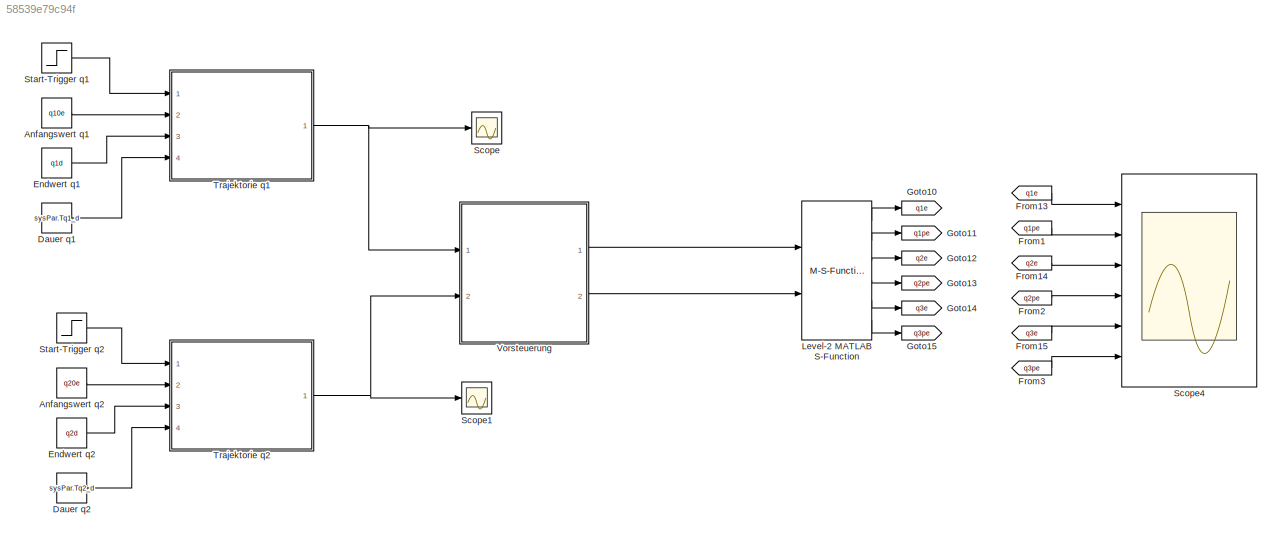
MODEL slx_58539e79c94f
KIND model
CONFIG AbsTol = auto
CONFIG FixedStep = auto
CONFIG InitFcn = Initialisierung
CONFIG MaxStep = auto
CONFIG MinStep = auto
CONFIG RelTol = 1e-3
CONFIG SampleTimeConstraint = Unconstrained
CONFIG Solver = ode113
CONFIG SolverMode = Auto
CONFIG SolverName = ode113
CONFIG StartTime = 0.0
CONFIG StopTime = 100
BLOCK [Constant] Anfangswert q1
  Value = q10e
BLOCK [Constant] Anfangswert q2
  Value = q20e
BLOCK [Constant] Dauer q1
  Value = sysPar.Tq1_d
BLOCK [Constant] Dauer q2
  Value = sysPar.Tq2_d
BLOCK [Constant] Endwert q1
  Value = q1d
BLOCK [Constant] Endwert q2
  Value = q2d
BLOCK [From] From1
  GotoTag = q1pe
  TagVisibility = global
BLOCK [From] From13
  GotoTag = q1e
  TagVisibility = global
BLOCK [From] From14
  GotoTag = q2e
  TagVisibility = global
BLOCK [From] From15
  GotoTag = q3e
  TagVisibility = global
BLOCK [From] From2
  GotoTag = q2pe
  TagVisibility = global
BLOCK [From] From3
  GotoTag = q3pe
  TagVisibility = global
BLOCK [Goto] Goto10
  GotoTag = q1e
  TagVisibility = global
BLOCK [Goto] Goto11
  GotoTag = q1pe
  TagVisibility = global
BLOCK [Goto] Goto12
  GotoTag = q2e
  TagVisibility = global
BLOCK [Goto] Goto13
  GotoTag = q2pe
  TagVisibility = global
BLOCK [Goto] Goto14
  GotoTag = q3e
  TagVisibility = global
BLOCK [Goto] Goto15
  GotoTag = q3pe
  TagVisibility = global
BLOCK [M-S-Function] Level-2 MATLAB S-Function
  FunctionName = Heli_einfach
  Parameters = sysPar.xR [sysPar.a1 sysPar.a2 sysPar.a3 sysPar.b1 sysPar.b2 sysPar.b3]
  Ports = [2, 6]
BLOCK [Scope] Scope
  Ports = [1]
  ScopeSpecificationString = C++SS(StrPVP('SaveName','ScopeData1'),StrPVP('LimitDataPoints','on'),StrPVP('DataFormat','Array'),StrPVP('Decimation','1'),StrPVP('BlockParamSampleInput','off'))
BLOCK [Scope] Scope1
  Ports = [1]
  ScopeSpecificationString = C++SS(StrPVP('SaveName','ScopeData1'),StrPVP('SaveName','ScopeData2'),StrPVP('LimitDataPoints','on'),StrPVP('DataFormat','Array'),StrPVP('Decimation','1'),StrPVP('BlockParamSampleInput','off'))
BLOCK [Scope] Scope4
  NumInputPorts = 6
  Ports = [6]
  ScopeSpecificationString = Simulink.scopes.TimeScopeBlockCfg('CurrentConfiguration', extmgr.ConfigurationSet(extmgr.Configuration('Core','General UI',true),extmgr.Configuration('Core','Source UI',true),extmgr.Configuration('Sources','WiredSimulink',true,'DataLoggingVariableName','ScopeData4'),extmgr.Configuration('Visuals','Time Domain',true,'SerializedDisplays',{struct('MinYLimReal','5.98136','MaxYLimReal','6.53308','YLabe...<+4859ch>
BLOCK [Step] Start-Trigger q1
  SampleTime = 0
  Time = sysPar.Tq1_s
BLOCK [Step] Start-Trigger q2
  SampleTime = 0
  Time = sysPar.Tq2_s
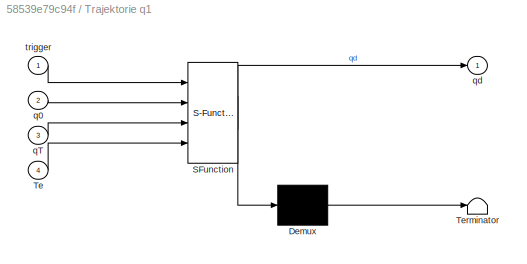
BLOCK [SubSystem] Trajektorie q1
  ErrorFcn = Stateflow.Translate.translate
  PermitHierarchicalResolution = ExplicitOnly
  Ports = [4, 1]
  RequestExecContextInheritance = off
  SFBlockType = MATLAB Function
  TreatAsAtomicUnit = on
  Variant = off
BLOCK [Demux] Trajektorie q1/ Demux 
  Outputs = 1
  Ports = [1, 1]
BLOCK [S-Function] Trajektorie q1/ SFunction 
  EnableBusSupport = on
  FunctionName = sf_sfun
  Parameters = sysPar
  PortCounts = [4 2]
  Ports = [4, 2]
  SFunctionDeploymentMode = off
  Tag = Stateflow S-Function Sim_Helikopter_vereinfacht 1
BLOCK [Terminator] Trajektorie q1/ Terminator 
BLOCK [Inport] Trajektorie q1/Te
  IconDisplay = Port number
  Port = 4
BLOCK [Inport] Trajektorie q1/q0
  IconDisplay = Port number
  Port = 2
BLOCK [Inport] Trajektorie q1/qT
  IconDisplay = Port number
  Port = 3
BLOCK [Outport] Trajektorie q1/qd
  IconDisplay = Port number
BLOCK [Inport] Trajektorie q1/trigger
  IconDisplay = Port number
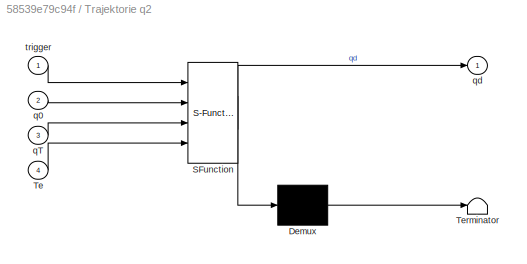
BLOCK [SubSystem] Trajektorie q2
  ErrorFcn = Stateflow.Translate.translate
  PermitHierarchicalResolution = ExplicitOnly
  Ports = [4, 1]
  RequestExecContextInheritance = off
  SFBlockType = MATLAB Function
  TreatAsAtomicUnit = on
  Variant = off
BLOCK [Demux] Trajektorie q2/ Demux 
  Outputs = 1
  Ports = [1, 1]
BLOCK [S-Function] Trajektorie q2/ SFunction 
  EnableBusSupport = on
  FunctionName = sf_sfun
  Parameters = sysPar
  PortCounts = [4 2]
  Ports = [4, 2]
  SFunctionDeploymentMode = off
  Tag = Stateflow S-Function Sim_Helikopter_vereinfacht 2
BLOCK [Terminator] Trajektorie q2/ Terminator 
BLOCK [Inport] Trajektorie q2/Te
  IconDisplay = Port number
  Port = 4
BLOCK [Inport] Trajektorie q2/q0
  IconDisplay = Port number
  Port = 2
BLOCK [Inport] Trajektorie q2/qT
  IconDisplay = Port number
  Port = 3
BLOCK [Outport] Trajektorie q2/qd
  IconDisplay = Port number
BLOCK [Inport] Trajektorie q2/trigger
  IconDisplay = Port number
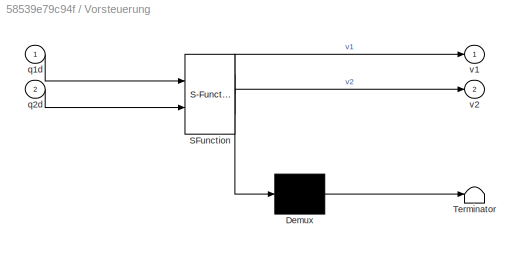
BLOCK [SubSystem] Vorsteuerung 
  ErrorFcn = Stateflow.Translate.translate
  PermitHierarchicalResolution = ExplicitOnly
  Ports = [2, 2]
  RequestExecContextInheritance = off
  SFBlockType = MATLAB Function
  TreatAsAtomicUnit = on
  Variant = off
BLOCK [Demux] Vorsteuerung / Demux 
  Outputs = 1
  Ports = [1, 1]
BLOCK [S-Function] Vorsteuerung / SFunction 
  EnableBusSupport = on
  FunctionName = sf_sfun
  Parameters = sysPar
  PortCounts = [2 3]
  Ports = [2, 3]
  SFunctionDeploymentMode = off
  Tag = Stateflow S-Function Sim_Helikopter_vereinfacht 3
BLOCK [Terminator] Vorsteuerung / Terminator 
BLOCK [Inport] Vorsteuerung /q1d
  IconDisplay = Port number
BLOCK [Inport] Vorsteuerung /q2d
  IconDisplay = Port number
  Port = 2
BLOCK [Outport] Vorsteuerung /v1
  IconDisplay = Port number
BLOCK [Outport] Vorsteuerung /v2
  IconDisplay = Port number
  Port = 2
LINE Anfangswert q1:1 -> Trajektorie q1:2
LINE Anfangswert q2:1 -> Trajektorie q2:2
LINE Dauer q1:1 -> Trajektorie q1:4
LINE Dauer q2:1 -> Trajektorie q2:4
LINE Endwert q1:1 -> Trajektorie q1:3
LINE Endwert q2:1 -> Trajektorie q2:3
LINE From13:1 -> Scope4:1
LINE From14:1 -> Scope4:3
LINE From15:1 -> Scope4:5
LINE From1:1 -> Scope4:2
LINE From2:1 -> Scope4:4
LINE From3:1 -> Scope4:6
LINE Level-2 MATLAB S-Function:1 -> Goto10:1
LINE Level-2 MATLAB S-Function:2 -> Goto11:1
LINE Level-2 MATLAB S-Function:3 -> Goto12:1
LINE Level-2 MATLAB S-Function:4 -> Goto13:1
LINE Level-2 MATLAB S-Function:5 -> Goto14:1
LINE Level-2 MATLAB S-Function:6 -> Goto15:1
LINE Start-Trigger q1:1 -> Trajektorie q1:1
LINE Start-Trigger q2:1 -> Trajektorie q2:1
NET Trajektorie q1:1 -> Scope:1, Vorsteuerung :1
NET Trajektorie q2:1 -> Scope1:1, Vorsteuerung :2
LINE Vorsteuerung :1 -> Level-2 MATLAB S-Function:1
LINE Vorsteuerung :2 -> Level-2 MATLAB S-Function:2
note: NET lines group one-source signal fan-out (src -> all destinations, sorted); 1:1 wires keep LINE
CHART Trajektorie q1 states=1 transitions=1
  STATE_LABEL 'eML_blk_kernel()'
  STATE_LABEL 'SCRIPT:\nfunction qd  = fcn(trigger,q0,qT,Te,sysPar)\n\n\nbeta5 = sysPar.beta5;\nbeta6 = sysPar.beta6;\nbeta7 = sysPar.beta7;\nbeta8 = sysPar.beta8;\nbeta9 = sysPar.beta9;\n\n\npersistent t;\n\nTa=sysPar.Ta;\nT=Te;\nif isempty(t)\n    t=0;\nend\nif(trigger)\n    q=q0 + (qT-q0) * (beta5*(t/T)^5+beta6*(t/T)^6+beta7*(t/T)^7+beta8*(t/T)^8+beta9*(t/T)^9);\n    qp=(qT - q0) * (5 * beta5 * t ^ 4 / T ^ 5 + 6 * beta6 * t ^ 5 ...<+751ch>'
CHART Trajektorie q2 states=1 transitions=1
  STATE_LABEL 'eML_blk_kernel()'
  STATE_LABEL 'SCRIPT:\nfunction qd  = fcn(trigger,q0,qT,Te,sysPar)\n\nbeta5 = sysPar.beta5;\nbeta6 = sysPar.beta6;\nbeta7 = sysPar.beta7;\nbeta8 = sysPar.beta8;\nbeta9 = sysPar.beta9;\n\n\npersistent t;\n\nTa=sysPar.Ta;\nT=Te;\nif isempty(t)\n    t=0;\nend\nif(trigger)\n    q=q0 + (qT-q0) * (beta5*(t/T)^5+beta6*(t/T)^6+beta7*(t/T)^7+beta8*(t/T)^8+beta9*(t/T)^9);\n    qp=(qT - q0) * (5 * beta5 * t ^ 4 / T ^ 5 + 6 * beta6 * t ^ 5 /...<+751ch>'
CHART Vorsteuerung
 states=1 transitions=1
  STATE_LABEL 'eML_blk_kernel()'
  STATE_LABEL 'SCRIPT:\nfunction [v1,v2] = fcn(q1d,q2d,sysPar)\n\nq1pp=q1d(3);\nq1ppp=q1d(4);\nq1pppp=q1d(5);\n\na1=sysPar.a1;\na2=sysPar.a2;\na3=sysPar.a3;\nb1=sysPar.b1;\nb2=sysPar.b2;\nb3=sysPar.b3;\n\nq2=q2d(1);\nq2p=q2d(2);\nq2pp=q2d(3);\nq2ppp=q2d(4);\nq2pppp=q2d(5);\n\nv1 = -0.1e1 / b2 * (a1 * sin(q2) + a2 * cos(q2) - q2pp) * sqrt(b2 ^ 2 * q1pp ^ 2 / b1 ^ 2 / cos(q2) ^ 2 / (a1 * sin(q2) + a2 * cos(q2) - q2pp) ^ 2 + 0.1e1);\nv...<+2161ch>'
